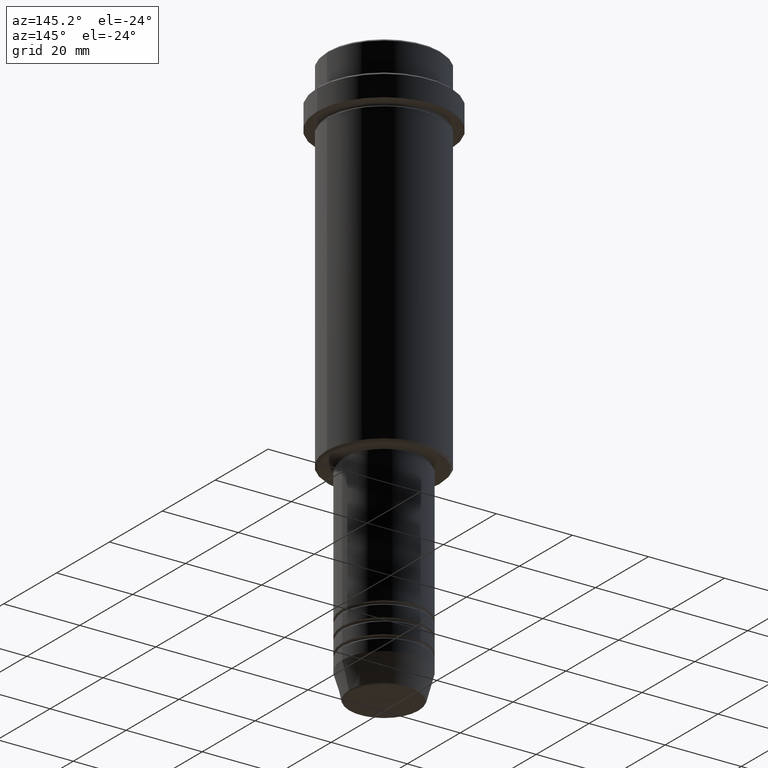
[diagram: clean part render]
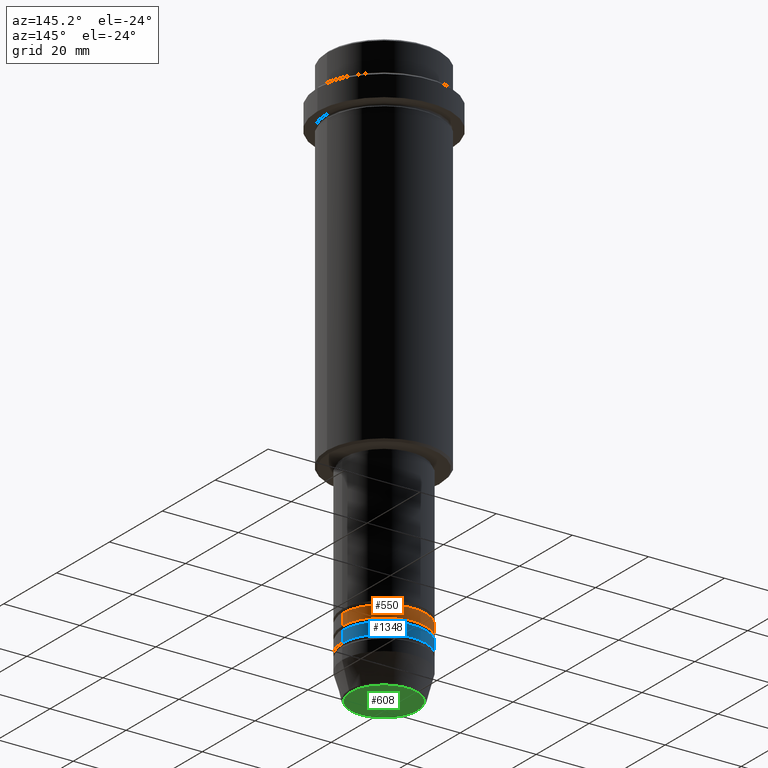
[diagram: same view with three faces highlighted in distinct colors, each labeled with its STEP entity id]
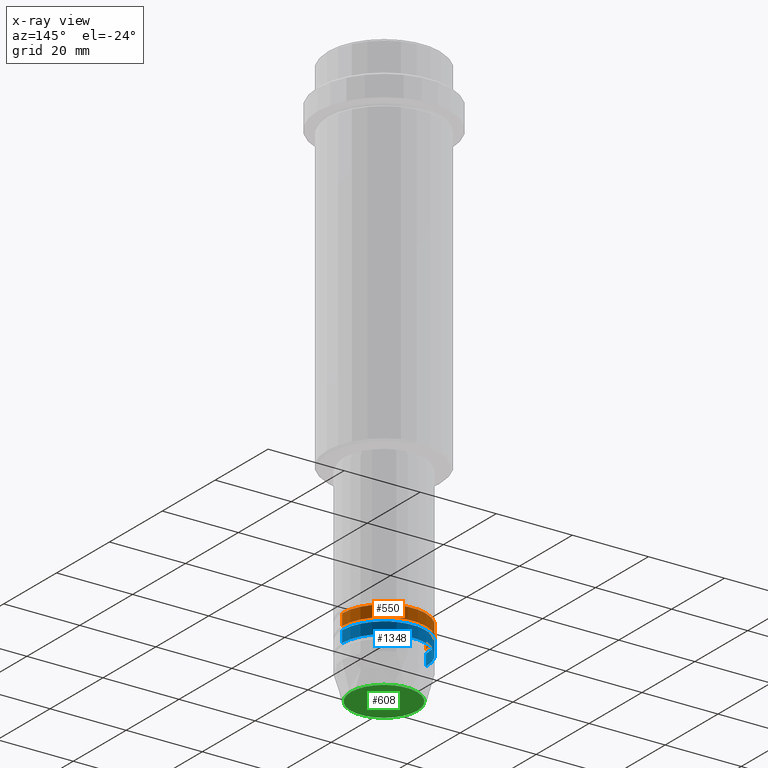
[diagram: x-ray of the same camera — body ghosted, the three highlighted faces saturated]
A machine part, auxiliary view with three faces highlighted in distinct colors.
The next image is the same camera in x-ray (body ghosted, the three faces saturated) — at least one of them is partly hidden behind the body in this view.
Their STEP definitions:

[orange] entity #550 — the highlighted cylindrical surface (partial cylindrical patch) has radius 11 mm, axis along (-0, -0, 1).
#15 = VERTEX_POINT ( 'NONE', #485 ) ;
#46 = VERTEX_POINT ( 'NONE', #1229 ) ;
#147 = CARTESIAN_POINT ( 'NONE',  ( -11.00000000000000000, 1.347111479062088405E-15, 0.000000000000000000 ) ) ;
#187 = LINE ( 'NONE', #1266, #745 ) ;
#188 = AXIS2_PLACEMENT_3D ( 'NONE', #814, #1214, #1244 ) ;
#211 = CIRCLE ( 'NONE', #188, 11.00000000000000000 ) ;
#215 = VERTEX_POINT ( 'NONE', #844 ) ;
#237 = DIRECTION ( 'NONE',  ( -0.000000000000000000, -0.000000000000000000, 1.000000000000000000 ) ) ;
#247 = ORIENTED_EDGE ( 'NONE', *, *, #543, .F. ) ;
#302 = DIRECTION ( 'NONE',  ( -0.000000000000000000, -0.000000000000000000, 1.000000000000000000 ) ) ;
#361 = EDGE_CURVE ( 'NONE', #215, #46, #1215, .T. ) ;
#399 = CARTESIAN_POINT ( 'NONE',  ( 0.000000000000000000, 0.000000000000000000, 0.000000000000000000 ) ) ;
#429 = VERTEX_POINT ( 'NONE', #579 ) ;
#455 = ORIENTED_EDGE ( 'NONE', *, *, #1362, .T. ) ;
#485 = CARTESIAN_POINT ( 'NONE',  ( 11.00000000000000000, 0.000000000000000000, -131.9999999999998863 ) ) ;
#543 = EDGE_CURVE ( 'NONE', #429, #15, #187, .T. ) ;
#550 = ADVANCED_FACE ( 'NONE', ( #1358 ), #1385, .T. ) ;
#555 = ORIENTED_EDGE ( 'NONE', *, *, #943, .F. ) ;
#579 = CARTESIAN_POINT ( 'NONE',  ( 11.00000000000000000, 0.000000000000000000, -134.9999999999998863 ) ) ;
#582 = DIRECTION ( 'NONE',  ( -0.000000000000000000, -0.000000000000000000, 1.000000000000000000 ) ) ;
#669 = ORIENTED_EDGE ( 'NONE', *, *, #361, .T. ) ;
#733 = DIRECTION ( 'NONE',  ( 1.000000000000000000, 0.000000000000000000, 0.000000000000000000 ) ) ;
#745 = VECTOR ( 'NONE', #302, 1000.000000000000000 ) ;
#807 = DIRECTION ( 'NONE',  ( 1.000000000000000000, 0.000000000000000000, 0.000000000000000000 ) ) ;
#814 = CARTESIAN_POINT ( 'NONE',  ( 0.000000000000000000, 0.000000000000000000, -131.9999999999998863 ) ) ;
#844 = CARTESIAN_POINT ( 'NONE',  ( -11.00000000000000000, 1.347111479062088405E-15, -134.9999999999998863 ) ) ;
#900 = VECTOR ( 'NONE', #237, 1000.000000000000000 ) ;
#910 = CARTESIAN_POINT ( 'NONE',  ( 0.000000000000000000, 0.000000000000000000, -134.9999999999998863 ) ) ;
#935 = DIRECTION ( 'NONE',  ( -0.000000000000000000, -0.000000000000000000, 1.000000000000000000 ) ) ;
#943 = EDGE_CURVE ( 'NONE', #15, #46, #211, .T. ) ;
#996 = AXIS2_PLACEMENT_3D ( 'NONE', #910, #582, #807 ) ;
#1109 = CIRCLE ( 'NONE', #996, 11.00000000000000000 ) ;
#1214 = DIRECTION ( 'NONE',  ( -0.000000000000000000, -0.000000000000000000, 1.000000000000000000 ) ) ;
#1215 = LINE ( 'NONE', #147, #900 ) ;
#1219 = AXIS2_PLACEMENT_3D ( 'NONE', #399, #935, #733 ) ;
#1229 = CARTESIAN_POINT ( 'NONE',  ( -11.00000000000000000, 1.347111479062088405E-15, -131.9999999999998863 ) ) ;
#1244 = DIRECTION ( 'NONE',  ( 1.000000000000000000, 0.000000000000000000, 0.000000000000000000 ) ) ;
#1266 = CARTESIAN_POINT ( 'NONE',  ( 11.00000000000000000, 0.000000000000000000, 0.000000000000000000 ) ) ;
#1327 = EDGE_LOOP ( 'NONE', ( #455, #669, #555, #247 ) ) ;
#1358 = FACE_OUTER_BOUND ( 'NONE', #1327, .T. ) ;
#1362 = EDGE_CURVE ( 'NONE', #429, #215, #1109, .T. ) ;
#1385 = CYLINDRICAL_SURFACE ( 'NONE', #1219, 11.00000000000000000 ) ;

[blue] entity #1348 — the highlighted cylindrical surface (partial cylindrical patch) has radius 11 mm, axis along (-0, -0, 1).
#52 = AXIS2_PLACEMENT_3D ( 'NONE', #352, #459, #776 ) ;
#53 = DIRECTION ( 'NONE',  ( -0.000000000000000000, -0.000000000000000000, 1.000000000000000000 ) ) ;
#73 = AXIS2_PLACEMENT_3D ( 'NONE', #1374, #624, #497 ) ;
#141 = VECTOR ( 'NONE', #53, 1000.000000000000000 ) ;
#145 = VECTOR ( 'NONE', #1213, 1000.000000000000000 ) ;
#195 = CARTESIAN_POINT ( 'NONE',  ( -11.00000000000000000, 1.347111479062088405E-15, -135.9999999999998863 ) ) ;
#261 = VERTEX_POINT ( 'NONE', #195 ) ;
#334 = EDGE_CURVE ( 'NONE', #494, #261, #446, .T. ) ;
#339 = ORIENTED_EDGE ( 'NONE', *, *, #1387, .F. ) ;
#343 = DIRECTION ( 'NONE',  ( -0.000000000000000000, -0.000000000000000000, 1.000000000000000000 ) ) ;
#352 = CARTESIAN_POINT ( 'NONE',  ( 0.000000000000000000, 0.000000000000000000, 0.000000000000000000 ) ) ;
#365 = ORIENTED_EDGE ( 'NONE', *, *, #641, .T. ) ;
#386 = CIRCLE ( 'NONE', #73, 11.00000000000000000 ) ;
#446 = CIRCLE ( 'NONE', #874, 11.00000000000000000 ) ;
#452 = CYLINDRICAL_SURFACE ( 'NONE', #52, 11.00000000000000000 ) ;
#459 = DIRECTION ( 'NONE',  ( -0.000000000000000000, -0.000000000000000000, 1.000000000000000000 ) ) ;
#467 = CARTESIAN_POINT ( 'NONE',  ( -11.00000000000000000, 1.347111479062088405E-15, -138.9999999999999147 ) ) ;
#494 = VERTEX_POINT ( 'NONE', #1238 ) ;
#497 = DIRECTION ( 'NONE',  ( 1.000000000000000000, 0.000000000000000000, 0.000000000000000000 ) ) ;
#615 = CARTESIAN_POINT ( 'NONE',  ( -11.00000000000000000, 1.347111479062088405E-15, 0.000000000000000000 ) ) ;
#624 = DIRECTION ( 'NONE',  ( -0.000000000000000000, -0.000000000000000000, 1.000000000000000000 ) ) ;
#641 = EDGE_CURVE ( 'NONE', #1321, #261, #830, .T. ) ;
#677 = CARTESIAN_POINT ( 'NONE',  ( 11.00000000000000000, 0.000000000000000000, -138.9999999999999147 ) ) ;
#776 = DIRECTION ( 'NONE',  ( 1.000000000000000000, 0.000000000000000000, 0.000000000000000000 ) ) ;
#779 = DIRECTION ( 'NONE',  ( 1.000000000000000000, 0.000000000000000000, 0.000000000000000000 ) ) ;
#830 = LINE ( 'NONE', #615, #141 ) ;
#874 = AXIS2_PLACEMENT_3D ( 'NONE', #883, #343, #779 ) ;
#875 = CARTESIAN_POINT ( 'NONE',  ( 11.00000000000000000, 0.000000000000000000, 0.000000000000000000 ) ) ;
#883 = CARTESIAN_POINT ( 'NONE',  ( 0.000000000000000000, 0.000000000000000000, -135.9999999999998863 ) ) ;
#898 = FACE_OUTER_BOUND ( 'NONE', #1345, .T. ) ;
#976 = ORIENTED_EDGE ( 'NONE', *, *, #334, .F. ) ;
#982 = EDGE_CURVE ( 'NONE', #1390, #1321, #386, .T. ) ;
#1024 = LINE ( 'NONE', #875, #145 ) ;
#1213 = DIRECTION ( 'NONE',  ( -0.000000000000000000, -0.000000000000000000, 1.000000000000000000 ) ) ;
#1238 = CARTESIAN_POINT ( 'NONE',  ( 11.00000000000000000, 0.000000000000000000, -135.9999999999998863 ) ) ;
#1309 = ORIENTED_EDGE ( 'NONE', *, *, #982, .T. ) ;
#1321 = VERTEX_POINT ( 'NONE', #467 ) ;
#1345 = EDGE_LOOP ( 'NONE', ( #1309, #365, #976, #339 ) ) ;
#1348 = ADVANCED_FACE ( 'NONE', ( #898 ), #452, .T. ) ;
#1374 = CARTESIAN_POINT ( 'NONE',  ( 0.000000000000000000, 0.000000000000000000, -138.9999999999999147 ) ) ;
#1387 = EDGE_CURVE ( 'NONE', #1390, #494, #1024, .T. ) ;
#1390 = VERTEX_POINT ( 'NONE', #677 ) ;

[green] entity #608 — the highlighted planar face has unit normal (0, -0, 1).
#19 = VERTEX_POINT ( 'NONE', #894 ) ;
#24 = AXIS2_PLACEMENT_3D ( 'NONE', #941, #409, #1253 ) ;
#172 = PLANE ( 'NONE',  #1060 ) ;
#180 = FACE_OUTER_BOUND ( 'NONE', #581, .T. ) ;
#182 = EDGE_CURVE ( 'NONE', #610, #19, #988, .T. ) ;
#378 = DIRECTION ( 'NONE',  ( 1.000000000000000000, 0.000000000000000000, 0.000000000000000000 ) ) ;
#409 = DIRECTION ( 'NONE',  ( 0.000000000000000000, 0.000000000000000000, -1.000000000000000000 ) ) ;
#442 = ORIENTED_EDGE ( 'NONE', *, *, #465, .T. ) ;
#465 = EDGE_CURVE ( 'NONE', #19, #610, #639, .T. ) ;
#581 = EDGE_LOOP ( 'NONE', ( #442, #1201 ) ) ;
#608 = ADVANCED_FACE ( 'NONE', ( #180 ), #172, .F. ) ;
#610 = VERTEX_POINT ( 'NONE', #1370 ) ;
#639 = CIRCLE ( 'NONE', #679, 8.740692158992656502 ) ;
#644 = DIRECTION ( 'NONE',  ( 1.000000000000000000, 0.000000000000000000, 0.000000000000000000 ) ) ;
#679 = AXIS2_PLACEMENT_3D ( 'NONE', #1325, #1021, #378 ) ;
#742 = CARTESIAN_POINT ( 'NONE',  ( 0.000000000000000000, 0.000000000000000000, -150.0000000000000000 ) ) ;
#894 = CARTESIAN_POINT ( 'NONE',  ( 8.740692158992656502, 0.000000000000000000, -150.0000000000000000 ) ) ;
#941 = CARTESIAN_POINT ( 'NONE',  ( 0.000000000000000000, 0.000000000000000000, -150.0000000000000000 ) ) ;
#988 = CIRCLE ( 'NONE', #24, 8.740692158992656502 ) ;
#1021 = DIRECTION ( 'NONE',  ( 0.000000000000000000, 0.000000000000000000, -1.000000000000000000 ) ) ;
#1060 = AXIS2_PLACEMENT_3D ( 'NONE', #742, #1172, #644 ) ;
#1172 = DIRECTION ( 'NONE',  ( 0.000000000000000000, -0.000000000000000000, 1.000000000000000000 ) ) ;
#1201 = ORIENTED_EDGE ( 'NONE', *, *, #182, .T. ) ;
#1253 = DIRECTION ( 'NONE',  ( 1.000000000000000000, 0.000000000000000000, 0.000000000000000000 ) ) ;
#1325 = CARTESIAN_POINT ( 'NONE',  ( 0.000000000000000000, 0.000000000000000000, -150.0000000000000000 ) ) ;
#1370 = CARTESIAN_POINT ( 'NONE',  ( -8.740692158992656502, 1.099999016768739653E-15, -150.0000000000000000 ) ) ;